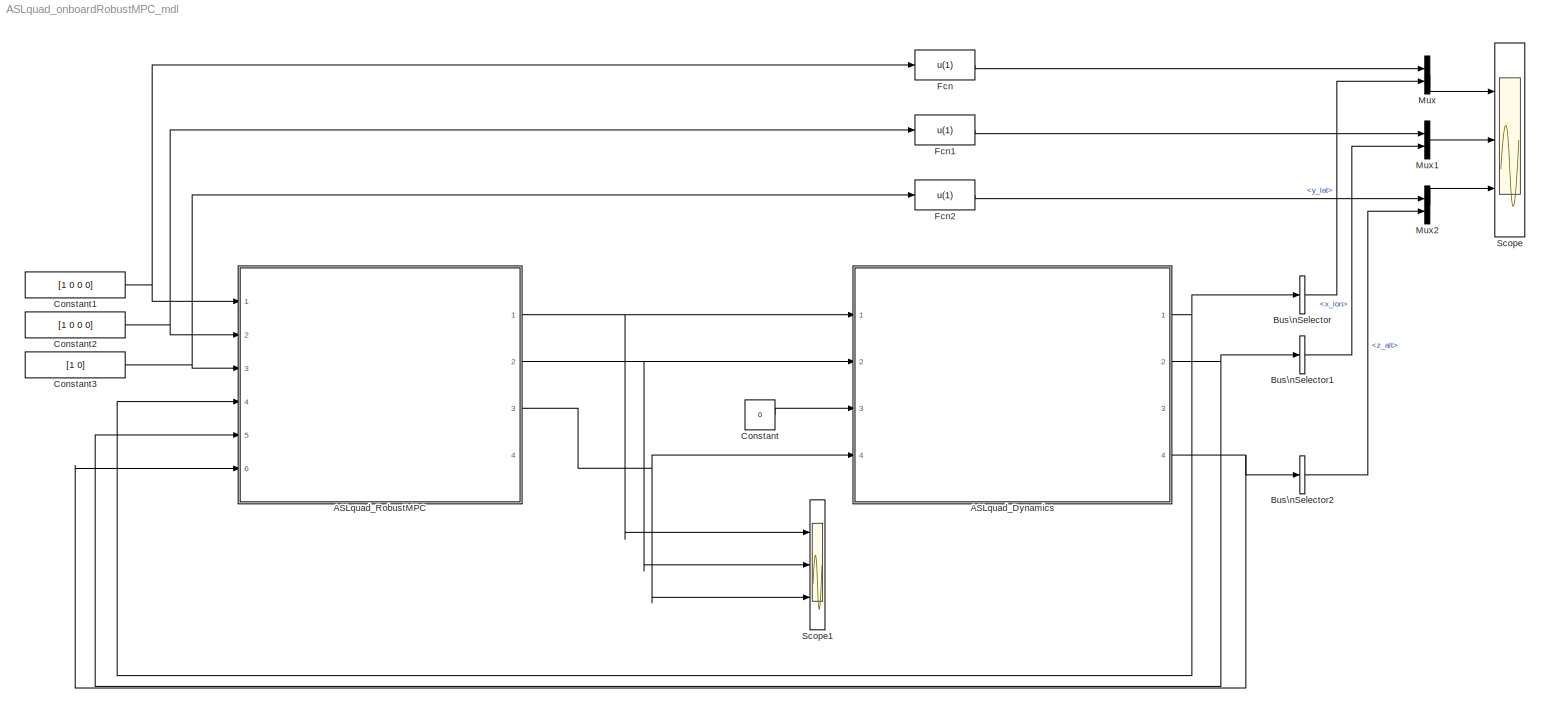
MODEL ASLquad_onboardRobustMPC_mdl
KIND model
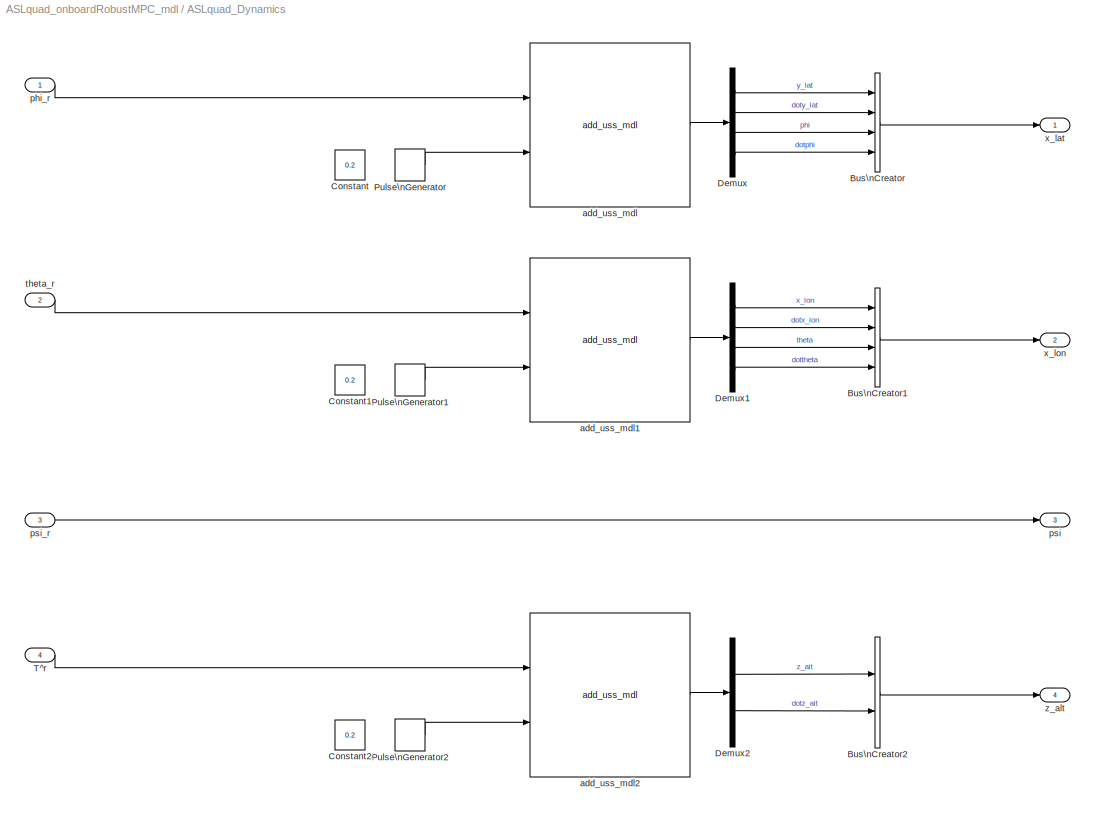
BLOCK [SubSystem] ASLquad_Dynamics
  FunctionWithSeparateData = off
  MaskHideContents = off
  MinAlgLoopOccurrences = off
  Opaque = off
  Ports = [4, 4]
  PropExecContextOutsideSubsystem = off
  RTWSystemCode = Auto
  RequestExecContextInheritance = off
  SID = 5
BLOCK [BusCreator] ASLquad_Dynamics/Bus\nCreator
  DisplayOption = bar
  Ports = [4, 1]
  SID = 50
BLOCK [BusCreator] ASLquad_Dynamics/Bus\nCreator1
  DisplayOption = bar
  Ports = [4, 1]
  SID = 51
BLOCK [BusCreator] ASLquad_Dynamics/Bus\nCreator2
  DisplayOption = bar
  Inputs = 2
  Ports = [2, 1]
  SID = 53
BLOCK [Constant] ASLquad_Dynamics/Constant
  SID = 17
  Value = 0.2
BLOCK [Constant] ASLquad_Dynamics/Constant1
  SID = 18
  Value = 0.2
BLOCK [Constant] ASLquad_Dynamics/Constant2
  SID = 19
  Value = 0.2
BLOCK [Demux] ASLquad_Dynamics/Demux
  DisplayOption = bar
  Ports = [1, 4]
  SID = 48
BLOCK [Demux] ASLquad_Dynamics/Demux1
  DisplayOption = bar
  Ports = [1, 4]
  SID = 52
BLOCK [Demux] ASLquad_Dynamics/Demux2
  DisplayOption = bar
  Outputs = 2
  Ports = [1, 2]
  SID = 54
BLOCK [DiscretePulseGenerator] ASLquad_Dynamics/Pulse\nGenerator
  Amplitude = .2
  Period = 2.5
  Ports = [0, 1]
  PulseType = Time based
  PulseWidth = 50
  SID = 69
BLOCK [DiscretePulseGenerator] ASLquad_Dynamics/Pulse\nGenerator1
  Amplitude = .2
  Period = 2.5
  Ports = [0, 1]
  PulseType = Time based
  PulseWidth = 50
  SID = 70
BLOCK [DiscretePulseGenerator] ASLquad_Dynamics/Pulse\nGenerator2
  Amplitude = .2
  Period = 2.5
  Ports = [0, 1]
  PulseType = Time based
  PulseWidth = 50
  SID = 71
BLOCK [Inport] ASLquad_Dynamics/T^r
  IconDisplay = Port number
  Port = 4
  SID = 10
BLOCK [Reference] ASLquad_Dynamics/add_uss_mdl  REF=Robust_MPC_Library/add_uss_mdl
  Ports = [2, 1]
  SID = 11
  SourceBlock = Robust_MPC_Library/add_uss_mdl
  add_usys_d_struct = add_usys_y_d
BLOCK [Reference] ASLquad_Dynamics/add_uss_mdl1  REF=Robust_MPC_Library/add_uss_mdl
  Ports = [2, 1]
  SID = 12
  SourceBlock = Robust_MPC_Library/add_uss_mdl
  add_usys_d_struct = add_usys_x_d
BLOCK [Reference] ASLquad_Dynamics/add_uss_mdl2  REF=Robust_MPC_Library/add_uss_mdl
  Ports = [2, 1]
  SID = 13
  SourceBlock = Robust_MPC_Library/add_uss_mdl
  add_usys_d_struct = add_usys_z_d
BLOCK [Inport] ASLquad_Dynamics/phi_r
  IconDisplay = Port number
  SID = 6
BLOCK [Outport] ASLquad_Dynamics/psi
  IconDisplay = Port number
  Port = 3
  SID = 15
BLOCK [Inport] ASLquad_Dynamics/psi_r
  IconDisplay = Port number
  Port = 3
  SID = 9
BLOCK [Inport] ASLquad_Dynamics/theta_r
  IconDisplay = Port number
  Port = 2
  SID = 8
BLOCK [Outport] ASLquad_Dynamics/x_lat
  IconDisplay = Port number
  SID = 7
BLOCK [Outport] ASLquad_Dynamics/x_lon
  IconDisplay = Port number
  Port = 2
  SID = 14
BLOCK [Outport] ASLquad_Dynamics/z_alt
  IconDisplay = Port number
  Port = 4
  SID = 16
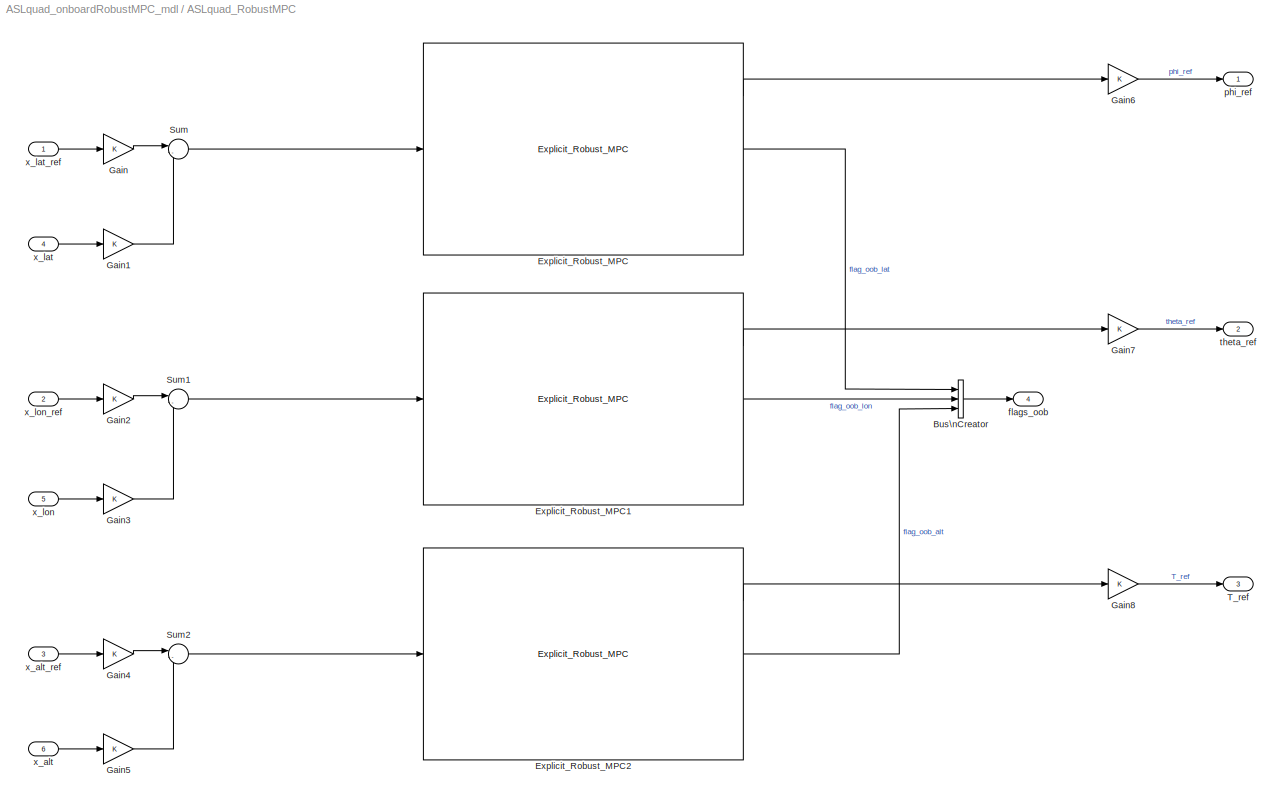
BLOCK [SubSystem] ASLquad_RobustMPC
  FunctionWithSeparateData = off
  MaskHideContents = off
  MinAlgLoopOccurrences = off
  Opaque = off
  Ports = [6, 4]
  PropExecContextOutsideSubsystem = off
  RTWSystemCode = Auto
  RequestExecContextInheritance = off
  SID = 2
BLOCK [BusCreator] ASLquad_RobustMPC/Bus\nCreator
  DisplayOption = bar
  Inputs = 3
  Ports = [3, 1]
  SID = 33
BLOCK [Reference] ASLquad_RobustMPC/Explicit_Robust_MPC  REF=Robust_MPC_Library/Explicit_Robust_MPC
  F = ASLquad_RobustMPC.Ydir.F
  G = ASLquad_RobustMPC.Ydir.G
  H = ASLquad_RobustMPC.Ydir.H
  Hi_init = zeros(100,ASLquad_RobustMPC.Ydir.Nx)
  K = ASLquad_RobustMPC.Ydir.K
  Ki_init = zeros(100,ASLquad_RobustMPC.Ydir.Nu)
  Nc = ASLquad_RobustMPC.Ydir.Nc
  Nx = ASLquad_RobustMPC.Ydir.Nx
  Ports = [1, 3]
  SID = 20
  SourceBlock = Robust_MPC_Library/Explicit_Robust_MPC
BLOCK [Reference] ASLquad_RobustMPC/Explicit_Robust_MPC1  REF=Robust_MPC_Library/Explicit_Robust_MPC
  F = ASLquad_RobustMPC.Xdir.F
  G = ASLquad_RobustMPC.Xdir.G
  H = ASLquad_RobustMPC.Xdir.H
  Hi_init = zeros(100,ASLquad_RobustMPC.Xdir.Nx)
  K = ASLquad_RobustMPC.Xdir.K
  Ki_init = zeros(100,ASLquad_RobustMPC.Xdir.Nu)
  Nc = ASLquad_RobustMPC.Xdir.Nc
  Nx = ASLquad_RobustMPC.Xdir.Nx
  Ports = [1, 3]
  SID = 27
  SourceBlock = Robust_MPC_Library/Explicit_Robust_MPC
BLOCK [Reference] ASLquad_RobustMPC/Explicit_Robust_MPC2  REF=Robust_MPC_Library/Explicit_Robust_MPC
  F = ASLquad_RobustMPC.Zdir.F
  G = ASLquad_RobustMPC.Zdir.G
  H = ASLquad_RobustMPC.Zdir.H
  Hi_init = zeros(100,ASLquad_RobustMPC.Zdir.Nx)
  K = ASLquad_RobustMPC.Zdir.K
  Ki_init = zeros(100,ASLquad_RobustMPC.Zdir.Nu)
  Nc = ASLquad_RobustMPC.Zdir.Nc
  Nx = ASLquad_RobustMPC.Zdir.Nx
  Ports = [1, 3]
  SID = 29
  SourceBlock = Robust_MPC_Library/Explicit_Robust_MPC
BLOCK [Gain] ASLquad_RobustMPC/Gain
  OutDataTypeStr = Inherit: Inherit via internal rule
  ParamDataTypeStr = Inherit: Inherit via internal rule
  SID = 39
  SampleTime = ASLquad_RobustMPC.Ydir.Ts
  SaturateOnIntegerOverflow = off
BLOCK [Gain] ASLquad_RobustMPC/Gain1
  OutDataTypeStr = Inherit: Inherit via internal rule
  ParamDataTypeStr = Inherit: Inherit via internal rule
  SID = 40
  SampleTime = ASLquad_RobustMPC.Ydir.Ts
  SaturateOnIntegerOverflow = off
BLOCK [Gain] ASLquad_RobustMPC/Gain2
  OutDataTypeStr = Inherit: Inherit via internal rule
  ParamDataTypeStr = Inherit: Inherit via internal rule
  SID = 41
  SampleTime = ASLquad_RobustMPC.Xdir.Ts
  SaturateOnIntegerOverflow = off
BLOCK [Gain] ASLquad_RobustMPC/Gain3
  OutDataTypeStr = Inherit: Inherit via internal rule
  ParamDataTypeStr = Inherit: Inherit via internal rule
  SID = 42
  SampleTime = ASLquad_RobustMPC.Xdir.Ts
  SaturateOnIntegerOverflow = off
BLOCK [Gain] ASLquad_RobustMPC/Gain4
  OutDataTypeStr = Inherit: Inherit via internal rule
  ParamDataTypeStr = Inherit: Inherit via internal rule
  SID = 43
  SampleTime = ASLquad_RobustMPC.Zdir.Ts
  SaturateOnIntegerOverflow = off
BLOCK [Gain] ASLquad_RobustMPC/Gain5
  OutDataTypeStr = Inherit: Inherit via internal rule
  ParamDataTypeStr = Inherit: Inherit via internal rule
  SID = 44
  SampleTime = ASLquad_RobustMPC.Zdir.Ts
  SaturateOnIntegerOverflow = off
BLOCK [Gain] ASLquad_RobustMPC/Gain6
  OutDataTypeStr = Inherit: Inherit via internal rule
  ParamDataTypeStr = Inherit: Inherit via internal rule
  SID = 45
  SampleTime = ASLquad_RobustMPC.Ydir.Ts
  SaturateOnIntegerOverflow = off
BLOCK [Gain] ASLquad_RobustMPC/Gain7
  OutDataTypeStr = Inherit: Inherit via internal rule
  ParamDataTypeStr = Inherit: Inherit via internal rule
  SID = 46
  SampleTime = ASLquad_RobustMPC.Xdir.Ts
  SaturateOnIntegerOverflow = off
BLOCK [Gain] ASLquad_RobustMPC/Gain8
  OutDataTypeStr = Inherit: Inherit via internal rule
  ParamDataTypeStr = Inherit: Inherit via internal rule
  SID = 47
  SampleTime = ASLquad_RobustMPC.Zdir.Ts
  SaturateOnIntegerOverflow = off
BLOCK [Sum] ASLquad_RobustMPC/Sum
  IconShape = round
  InputSameDT = off
  Inputs = |-+
  OutDataTypeStr = Inherit: Inherit via internal rule
  Ports = [2, 1]
  SID = 26
  SaturateOnIntegerOverflow = off
BLOCK [Sum] ASLquad_RobustMPC/Sum1
  IconShape = round
  InputSameDT = off
  Inputs = |-+
  OutDataTypeStr = Inherit: Inherit via internal rule
  Ports = [2, 1]
  SID = 28
  SaturateOnIntegerOverflow = off
BLOCK [Sum] ASLquad_RobustMPC/Sum2
  IconShape = round
  InputSameDT = off
  Inputs = |-+
  OutDataTypeStr = Inherit: Inherit via internal rule
  Ports = [2, 1]
  SID = 30
  SaturateOnIntegerOverflow = off
BLOCK [Outport] ASLquad_RobustMPC/T_ref
  IconDisplay = Port number
  Port = 3
  SID = 32
BLOCK [Outport] ASLquad_RobustMPC/flags_oob
  IconDisplay = Port number
  Port = 4
  SID = 34
BLOCK [Outport] ASLquad_RobustMPC/phi_ref
  IconDisplay = Port number
  SID = 4
BLOCK [Outport] ASLquad_RobustMPC/theta_ref
  IconDisplay = Port number
  Port = 2
  SID = 31
BLOCK [Inport] ASLquad_RobustMPC/x_alt
  IconDisplay = Port number
  Port = 6
  SID = 25
BLOCK [Inport] ASLquad_RobustMPC/x_alt_ref
  IconDisplay = Port number
  Port = 3
  SID = 22
BLOCK [Inport] ASLquad_RobustMPC/x_lat
  IconDisplay = Port number
  Port = 4
  SID = 23
BLOCK [Inport] ASLquad_RobustMPC/x_lat_ref
  IconDisplay = Port number
  SID = 3
BLOCK [Inport] ASLquad_RobustMPC/x_lon
  IconDisplay = Port number
  Port = 5
  SID = 24
BLOCK [Inport] ASLquad_RobustMPC/x_lon_ref
  IconDisplay = Port number
  Port = 2
  SID = 21
BLOCK [BusSelector] Bus\nSelector
  OutputSignals = y_lat
  Ports = [1, 1]
  SID = 55
BLOCK [BusSelector] Bus\nSelector1
  OutputSignals = x_lon
  Ports = [1, 1]
  SID = 57
BLOCK [BusSelector] Bus\nSelector2
  OutputSignals = z_alt
  Ports = [1, 1]
  SID = 58
BLOCK [Constant] Constant
  SID = 35
  Value = 0
BLOCK [Constant] Constant1
  SID = 36
  Value = [1 0 0 0]
BLOCK [Constant] Constant2
  SID = 37
  Value = [1 0 0 0]
BLOCK [Constant] Constant3
  SID = 38
  Value = [1 0]
BLOCK [Fcn] Fcn
  Expr = u(1)
  SID = 60
BLOCK [Fcn] Fcn1
  Expr = u(1)
  SID = 61
BLOCK [Fcn] Fcn2
  Expr = u(1)
  SID = 62
BLOCK [Mux] Mux
  DisplayOption = bar
  Inputs = 2
  Ports = [2, 1]
  SID = 56
BLOCK [Mux] Mux1
  DisplayOption = bar
  Inputs = 2
  Ports = [2, 1]
  SID = 63
BLOCK [Mux] Mux2
  DisplayOption = bar
  Inputs = 2
  Ports = [2, 1]
  SID = 64
BLOCK [Scope] Scope
  DataFormat = StructureWithTime
  Floating = off
  NumInputPorts = 3
  Ports = [3]
  SID = 65
  SampleTime = 0
  ShowLegends = off
  YMax = 1.00525~5~5
  YMin = 0.9995~-5~-5
BLOCK [Scope] Scope1
  DataFormat = StructureWithTime
  Floating = off
  NumInputPorts = 3
  Ports = [3]
  SID = 67
  SampleTime = 0
  SaveName = ScopeData1
  ShowLegends = off
  YMax = 325~5~5
  YMin = -25~-5~-5
LINE ASLquad_Dynamics/Bus\nCreator1:1 -> ASLquad_Dynamics/x_lon:1
LINE ASLquad_Dynamics/Bus\nCreator2:1 -> ASLquad_Dynamics/z_alt:1
LINE ASLquad_Dynamics/Bus\nCreator:1 -> ASLquad_Dynamics/x_lat:1
LINE ASLquad_Dynamics/Demux1:1 -> ASLquad_Dynamics/Bus\nCreator1:1
LINE ASLquad_Dynamics/Demux1:2 -> ASLquad_Dynamics/Bus\nCreator1:2
LINE ASLquad_Dynamics/Demux1:3 -> ASLquad_Dynamics/Bus\nCreator1:3
LINE ASLquad_Dynamics/Demux1:4 -> ASLquad_Dynamics/Bus\nCreator1:4
LINE ASLquad_Dynamics/Demux2:1 -> ASLquad_Dynamics/Bus\nCreator2:1
LINE ASLquad_Dynamics/Demux2:2 -> ASLquad_Dynamics/Bus\nCreator2:2
LINE ASLquad_Dynamics/Demux:1 -> ASLquad_Dynamics/Bus\nCreator:1
LINE ASLquad_Dynamics/Demux:2 -> ASLquad_Dynamics/Bus\nCreator:2
LINE ASLquad_Dynamics/Demux:3 -> ASLquad_Dynamics/Bus\nCreator:3
LINE ASLquad_Dynamics/Demux:4 -> ASLquad_Dynamics/Bus\nCreator:4
LINE ASLquad_Dynamics/Pulse\nGenerator1:1 -> ASLquad_Dynamics/add_uss_mdl1:2
LINE ASLquad_Dynamics/Pulse\nGenerator2:1 -> ASLquad_Dynamics/add_uss_mdl2:2
LINE ASLquad_Dynamics/Pulse\nGenerator:1 -> ASLquad_Dynamics/add_uss_mdl:2
LINE ASLquad_Dynamics/T^r:1 -> ASLquad_Dynamics/add_uss_mdl2:1
LINE ASLquad_Dynamics/add_uss_mdl1:1 -> ASLquad_Dynamics/Demux1:1
LINE ASLquad_Dynamics/add_uss_mdl2:1 -> ASLquad_Dynamics/Demux2:1
LINE ASLquad_Dynamics/add_uss_mdl:1 -> ASLquad_Dynamics/Demux:1
LINE ASLquad_Dynamics/phi_r:1 -> ASLquad_Dynamics/add_uss_mdl:1
LINE ASLquad_Dynamics/psi_r:1 -> ASLquad_Dynamics/psi:1
LINE ASLquad_Dynamics/theta_r:1 -> ASLquad_Dynamics/add_uss_mdl1:1
NET ASLquad_Dynamics:1 -> ASLquad_RobustMPC:4, Bus\nSelector:1
NET ASLquad_Dynamics:2 -> ASLquad_RobustMPC:5, Bus\nSelector1:1
NET ASLquad_Dynamics:4 -> ASLquad_RobustMPC:6, Bus\nSelector2:1
LINE ASLquad_RobustMPC/Bus\nCreator:1 -> ASLquad_RobustMPC/flags_oob:1
LINE ASLquad_RobustMPC/Explicit_Robust_MPC1:1 -> ASLquad_RobustMPC/Gain7:1
LINE ASLquad_RobustMPC/Explicit_Robust_MPC1:2 -> ASLquad_RobustMPC/Bus\nCreator:2
LINE ASLquad_RobustMPC/Explicit_Robust_MPC2:1 -> ASLquad_RobustMPC/Gain8:1
LINE ASLquad_RobustMPC/Explicit_Robust_MPC2:2 -> ASLquad_RobustMPC/Bus\nCreator:3
LINE ASLquad_RobustMPC/Explicit_Robust_MPC:1 -> ASLquad_RobustMPC/Gain6:1
LINE ASLquad_RobustMPC/Explicit_Robust_MPC:2 -> ASLquad_RobustMPC/Bus\nCreator:1
LINE ASLquad_RobustMPC/Gain1:1 -> ASLquad_RobustMPC/Sum:2
LINE ASLquad_RobustMPC/Gain2:1 -> ASLquad_RobustMPC/Sum1:1
LINE ASLquad_RobustMPC/Gain3:1 -> ASLquad_RobustMPC/Sum1:2
LINE ASLquad_RobustMPC/Gain4:1 -> ASLquad_RobustMPC/Sum2:1
LINE ASLquad_RobustMPC/Gain5:1 -> ASLquad_RobustMPC/Sum2:2
LINE ASLquad_RobustMPC/Gain6:1 -> ASLquad_RobustMPC/phi_ref:1
LINE ASLquad_RobustMPC/Gain7:1 -> ASLquad_RobustMPC/theta_ref:1
LINE ASLquad_RobustMPC/Gain8:1 -> ASLquad_RobustMPC/T_ref:1
LINE ASLquad_RobustMPC/Gain:1 -> ASLquad_RobustMPC/Sum:1
LINE ASLquad_RobustMPC/Sum1:1 -> ASLquad_RobustMPC/Explicit_Robust_MPC1:1
LINE ASLquad_RobustMPC/Sum2:1 -> ASLquad_RobustMPC/Explicit_Robust_MPC2:1
LINE ASLquad_RobustMPC/Sum:1 -> ASLquad_RobustMPC/Explicit_Robust_MPC:1
LINE ASLquad_RobustMPC/x_alt:1 -> ASLquad_RobustMPC/Gain5:1
LINE ASLquad_RobustMPC/x_alt_ref:1 -> ASLquad_RobustMPC/Gain4:1
LINE ASLquad_RobustMPC/x_lat:1 -> ASLquad_RobustMPC/Gain1:1
LINE ASLquad_RobustMPC/x_lat_ref:1 -> ASLquad_RobustMPC/Gain:1
LINE ASLquad_RobustMPC/x_lon:1 -> ASLquad_RobustMPC/Gain3:1
LINE ASLquad_RobustMPC/x_lon_ref:1 -> ASLquad_RobustMPC/Gain2:1
NET ASLquad_RobustMPC:1 -> ASLquad_Dynamics:1, Scope1:1
NET ASLquad_RobustMPC:2 -> ASLquad_Dynamics:2, Scope1:2
NET ASLquad_RobustMPC:3 -> ASLquad_Dynamics:4, Scope1:3
LINE Bus\nSelector1:1 -> Mux1:2
LINE Bus\nSelector2:1 -> Mux2:2
LINE Bus\nSelector:1 -> Mux:2
NET Constant1:1 -> ASLquad_RobustMPC:1, Fcn:1
NET Constant2:1 -> ASLquad_RobustMPC:2, Fcn1:1
NET Constant3:1 -> ASLquad_RobustMPC:3, Fcn2:1
LINE Constant:1 -> ASLquad_Dynamics:3
LINE Fcn1:1 -> Mux1:1
LINE Fcn2:1 -> Mux2:1
LINE Fcn:1 -> Mux:1
LINE Mux1:1 -> Scope:2
LINE Mux2:1 -> Scope:3
LINE Mux:1 -> Scope:1
note: NET lines group one-source signal fan-out (src -> all destinations, sorted); 1:1 wires keep LINE
